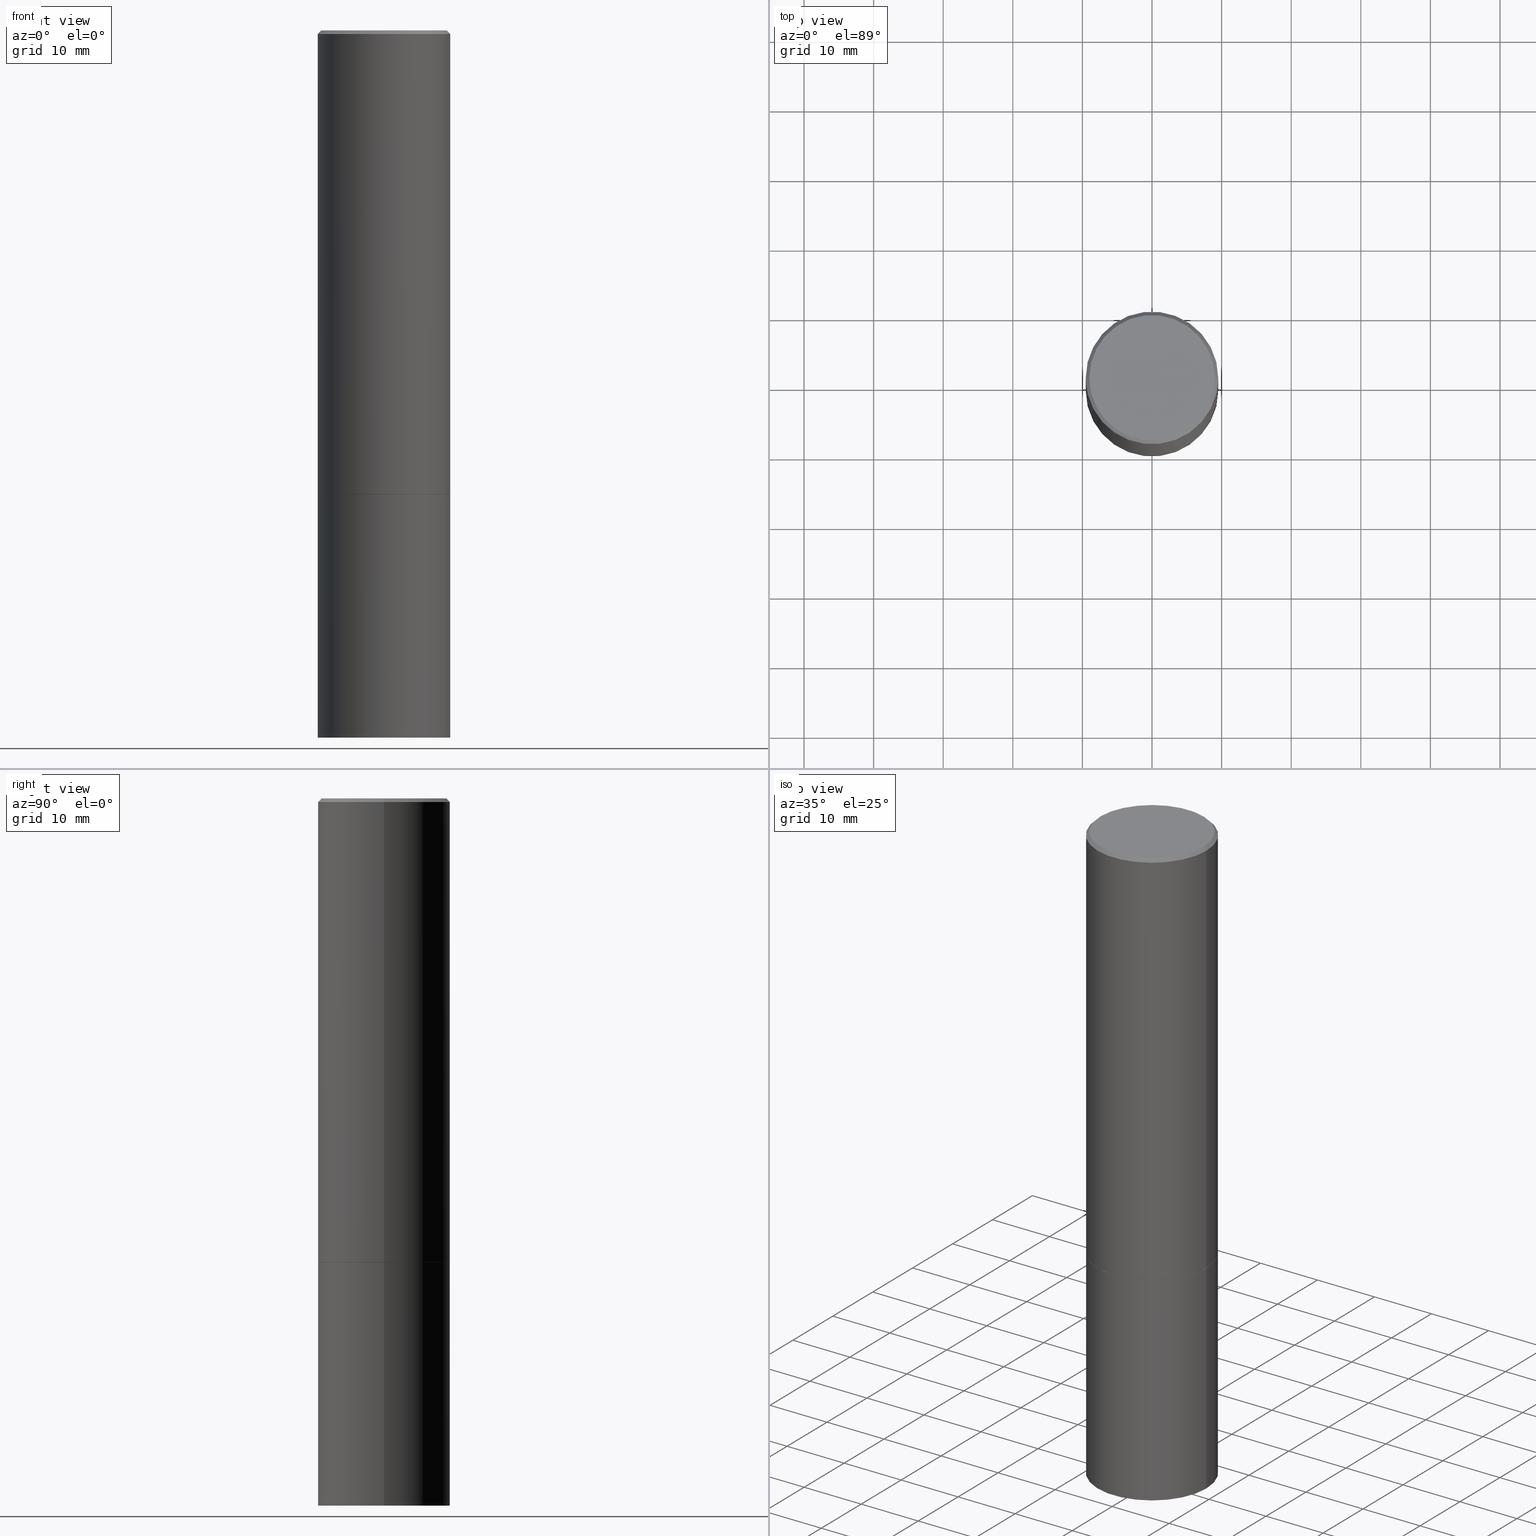
[diagram: canonical four-view strip — front | top / right | iso, engineering-drawing reading convention]
A machine part, canonical four-view strip (front | top / right | iso — engineering-drawing reading convention). The complete STEP part file that produces these views, byte-faithful:
ISO-10303-21;
HEADER;
FILE_DESCRIPTION (( 'STEP AP203' ),
    '1' );
FILE_NAME ('72985.STEP',
    '2024-02-29T06:45:24',
    ( '' ),
    ( '' ),
    'SwSTEP 2.0',
    'SolidWorks 2023',
    '' );
FILE_SCHEMA (( 'CONFIG_CONTROL_DESIGN' ));
ENDSEC;

DATA;
#1 = PERSON_AND_ORGANIZATION_ROLE ( 'creator' ) ;
#2 = ORIENTED_EDGE ( 'NONE', *, *, #313, .T. ) ;
#3 = ORIENTED_EDGE ( 'NONE', *, *, #294, .T. ) ;
#4 = EDGE_CURVE ( 'NONE', #93, #208, #218, .T. ) ;
#5 = AXIS2_PLACEMENT_3D ( 'NONE', #358, #146, #143 ) ;
#6 = VERTEX_POINT ( 'NONE', #248 ) ;
#7 = CARTESIAN_POINT ( 'NONE',  ( -3.131554243005659264E-46, 4.471029511141341874E-32, 1.280553747030123384E-17 ) ) ;
#8 = PRODUCT_DEFINITION_SHAPE ( 'NONE', 'NONE',  #169 ) ;
#9 = EDGE_LOOP ( 'NONE', ( #160, #308, #121, #77 ) ) ;
#10 = CARTESIAN_POINT ( 'NONE',  ( 0.3739999999999999991, -1.177676655591791904E-14, -2.624999999999999556 ) ) ;
#11 = ADVANCED_FACE ( 'NONE', ( #18 ), #163, .T. ) ;
#12 = CONICAL_SURFACE ( 'NONE', #165, 0.3739999999999999991, 0.7853981633978239785 ) ;
#13 = CIRCLE ( 'NONE', #149, 0.3749999999999996114 ) ;
#14 = CARTESIAN_POINT ( 'NONE',  ( 0.000000000000000000, 0.000000000000000000, 0.000000000000000000 ) ) ;
#15 = DESIGN_CONTEXT ( 'detailed design', #363, 'design' ) ;
#16 = ORIENTED_EDGE ( 'NONE', *, *, #344, .F. ) ;
#17 = EDGE_CURVE ( 'NONE', #338, #319, #361, .T. ) ;
#18 = FACE_OUTER_BOUND ( 'NONE', #212, .T. ) ;
#19 = ORGANIZATION ( 'UNSPECIFIED', 'UNSPECIFIED', '' ) ;
#20 = LINE ( 'NONE', #287, #132 ) ;
#21 = ADVANCED_FACE ( 'NONE', ( #101 ), #167, .T. ) ;
#22 = DIRECTION ( 'NONE',  ( 1.000000000000000000, -6.982962677686266711E-15, 0.000000000000000000 ) ) ;
#23 = CARTESIAN_POINT ( 'NONE',  ( 2.618611004132448230E-15, 0.3749999999999861222, -4.000000000000000888 ) ) ;
#24 = DATE_AND_TIME ( #235, #46 ) ;
#25 = FACE_OUTER_BOUND ( 'NONE', #158, .T. ) ;
#26 = DIRECTION ( 'NONE',  ( 1.000000000000000000, -6.982962677686265133E-15, 0.000000000000000000 ) ) ;
#27 = PERSON_AND_ORGANIZATION_ROLE ( 'creator' ) ;
#28 = CARTESIAN_POINT ( 'NONE',  ( 2.478951750578621448E-15, 0.3549999999999995381, -1.233073106554164423E-15 ) ) ;
#29 = EDGE_CURVE ( 'NONE', #322, #237, #172, .T. ) ;
#30 = FACE_OUTER_BOUND ( 'NONE', #335, .T. ) ;
#31 = CARTESIAN_POINT ( 'NONE',  ( 6.419355616235982445E-29, -9.165138514463255034E-15, -2.624999999999999556 ) ) ;
#32 =( GEOMETRIC_REPRESENTATION_CONTEXT ( 3 ) GLOBAL_UNCERTAINTY_ASSIGNED_CONTEXT ( ( #156 ) ) GLOBAL_UNIT_ASSIGNED_CONTEXT ( ( #133, #352, #301 ) ) REPRESENTATION_CONTEXT ( 'NONE', 'WORKASPACE' ) );
#33 = FACE_OUTER_BOUND ( 'NONE', #67, .T. ) ;
#34 = APPROVAL_ROLE ( '' ) ;
#35 = ORIENTED_EDGE ( 'NONE', *, *, #190, .F. ) ;
#36 = APPROVAL ( #263, 'UNSPECIFIED' ) ;
#37 = ORIENTED_EDGE ( 'NONE', *, *, #283, .T. ) ;
#38 = CIRCLE ( 'NONE', #331, 0.3750000000000000555 ) ;
#39 = AXIS2_PLACEMENT_3D ( 'NONE', #182, #80, #48 ) ;
#40 = VECTOR ( 'NONE', #198, 39.37007874015748143 ) ;
#41 = ADVANCED_FACE ( 'NONE', ( #284 ), #106, .T. ) ;
#42 = DIRECTION ( 'NONE',  ( -2.445468806185136597E-29, 3.491481338843145583E-15, 1.000000000000000000 ) ) ;
#43 = ORIENTED_EDGE ( 'NONE', *, *, #17, .T. ) ;
#44 = CARTESIAN_POINT ( 'NONE',  ( 6.419355616235982445E-29, -9.165138514463255034E-15, -2.624999999999999556 ) ) ;
#45 = AXIS2_PLACEMENT_3D ( 'NONE', #258, #78, #195 ) ;
#46 = LOCAL_TIME ( 1, 45, 24.00000000000000000, #86 ) ;
#47 = LINE ( 'NONE', #111, #277 ) ;
#48 = DIRECTION ( 'NONE',  ( 1.000000000000000000, -6.982962677686265133E-15, 0.000000000000000000 ) ) ;
#49 = DIRECTION ( 'NONE',  ( -2.445468806185136597E-29, 3.491481338843145583E-15, 1.000000000000000000 ) ) ;
#50 = DIRECTION ( 'NONE',  ( -2.445468806185136597E-29, 3.491481338843145583E-15, 1.000000000000000000 ) ) ;
#51 = VECTOR ( 'NONE', #116, 39.37007874015748143 ) ;
#52 = APPROVAL_PERSON_ORGANIZATION ( #314, #222, #61 ) ;
#53 = CC_DESIGN_PERSON_AND_ORGANIZATION_ASSIGNMENT ( #292, #183, ( #166 ) ) ;
#54 = COORDINATED_UNIVERSAL_TIME_OFFSET ( 5, 0, .BEHIND. ) ;
#55 = DIRECTION ( 'NONE',  ( -2.445468806185136877E-29, 3.491481338843145188E-15, 1.000000000000000000 ) ) ;
#56 = DIRECTION ( 'NONE',  ( -2.445468806185136597E-29, 3.491481338843145583E-15, 1.000000000000000000 ) ) ;
#57 = APPROVAL_STATUS ( 'not_yet_approved' ) ;
#58 = ORIENTED_EDGE ( 'NONE', *, *, #313, .F. ) ;
#59 = CARTESIAN_POINT ( 'NONE',  ( -0.3749999999999996114, 2.548781377355483957E-15, -0.02000000000000008715 ) ) ;
#60 = CIRCLE ( 'NONE', #342, 0.3549999999999995381 ) ;
#61 = APPROVAL_ROLE ( '' ) ;
#62 = FACE_OUTER_BOUND ( 'NONE', #189, .T. ) ;
#63 = AXIS2_PLACEMENT_3D ( 'NONE', #119, #293, #311 ) ;
#64 = ORIENTED_EDGE ( 'NONE', *, *, #178, .T. ) ;
#65 = EDGE_CURVE ( 'NONE', #322, #151, #38, .T. ) ;
#66 = ORIENTED_EDGE ( 'NONE', *, *, #76, .F. ) ;
#67 = EDGE_LOOP ( 'NONE', ( #123, #3 ) ) ;
#68 = PRODUCT ( '72985', '72985', '', ( #207 ) ) ;
#69 = ORIENTED_EDGE ( 'NONE', *, *, #265, .T. ) ;
#70 = CC_DESIGN_PERSON_AND_ORGANIZATION_ASSIGNMENT ( #257, #255, ( #68 ) ) ;
#71 = CARTESIAN_POINT ( 'NONE',  ( 0.3739999999999999991, -1.177676655591791904E-14, -2.624999999999999556 ) ) ;
#72 = CARTESIAN_POINT ( 'NONE',  ( -0.3749999999999999445, -1.951203070850261571E-15, -2.624000000000000110 ) ) ;
#73 = DIRECTION ( 'NONE',  ( 1.000000000000000000, -6.982962677686265922E-15, 4.876176775795935793E-29 ) ) ;
#74 = EDGE_LOOP ( 'NONE', ( #365, #291, #303, #269 ) ) ;
#75 = DIRECTION ( 'NONE',  ( 1.000000000000000000, -6.982962677686265922E-15, 4.876176775795935793E-29 ) ) ;
#76 = EDGE_CURVE ( 'NONE', #151, #6, #309, .T. ) ;
#77 = ORIENTED_EDGE ( 'NONE', *, *, #328, .F. ) ;
#78 = DIRECTION ( 'NONE',  ( 2.445468806185136597E-29, -3.491481338843145583E-15, -1.000000000000000000 ) ) ;
#79 = CC_DESIGN_APPROVAL ( #271, ( #302 ) ) ;
#80 = DIRECTION ( 'NONE',  ( -2.445468806185136597E-29, 3.491481338843145583E-15, 1.000000000000000000 ) ) ;
#81 = ORIENTED_EDGE ( 'NONE', *, *, #190, .T. ) ;
#82 = CARTESIAN_POINT ( 'NONE',  ( 6.419355616235982445E-29, -9.165138514463255034E-15, -2.624999999999999556 ) ) ;
#83 = EDGE_CURVE ( 'NONE', #319, #208, #47, .T. ) ;
#84 = DIRECTION ( 'NONE',  ( -2.445468806185136597E-29, 3.491481338843145583E-15, 1.000000000000000000 ) ) ;
#85 = LOCAL_TIME ( 1, 45, 24.00000000000000000, #115 ) ;
#86 = COORDINATED_UNIVERSAL_TIME_OFFSET ( 5, 0, .BEHIND. ) ;
#87 = CARTESIAN_POINT ( 'NONE',  ( 0.3750000000000000555, -1.178374951859560505E-14, -2.624999999999999556 ) ) ;
#88 = CARTESIAN_POINT ( 'NONE',  ( 6.416910147429799085E-29, -9.161647033124413605E-15, -2.624000000000000110 ) ) ;
#89 = PERSON_AND_ORGANIZATION ( #329, #19 ) ;
#90 = DIRECTION ( 'NONE',  ( 1.000000000000000000, -6.982962677686265133E-15, 0.000000000000000000 ) ) ;
#91 = VERTEX_POINT ( 'NONE', #221 ) ;
#92 = EDGE_CURVE ( 'NONE', #185, #322, #20, .T. ) ;
#93 = VERTEX_POINT ( 'NONE', #87 ) ;
#94 = CARTESIAN_POINT ( 'NONE',  ( -0.3750000000000000555, -8.900996675817542197E-15, -4.000000000000000000 ) ) ;
#95 = LOCAL_TIME ( 1, 45, 24.00000000000000000, #145 ) ;
#96 = DIRECTION ( 'NONE',  ( 1.000000000000000000, 0.000000000000000000, 0.000000000000000000 ) ) ;
#97 =( LENGTH_UNIT ( ) NAMED_UNIT ( * ) SI_UNIT ( $, .METRE. ) );
#98 = ADVANCED_FACE ( 'NONE', ( #25 ), #251, .F. ) ;
#99 = DIMENSIONAL_EXPONENTS ( 1.000000000000000000, 0.000000000000000000, 0.000000000000000000, 0.000000000000000000, 0.000000000000000000, 0.000000000000000000, 0.000000000000000000 ) ;
#100 = VECTOR ( 'NONE', #279, 39.37007874015748143 ) ;
#101 = FACE_OUTER_BOUND ( 'NONE', #268, .T. ) ;
#102 = CYLINDRICAL_SURFACE ( 'NONE', #253, 0.3749999999999998335 ) ;
#103 = CARTESIAN_POINT ( 'NONE',  ( 9.781875224740546387E-29, -1.396592535537258233E-14, -4.000000000000000000 ) ) ;
#104 = CC_DESIGN_DATE_AND_TIME_ASSIGNMENT ( #295, #227, ( #166 ) ) ;
#105 = ORIENTED_EDGE ( 'NONE', *, *, #283, .F. ) ;
#106 = CONICAL_SURFACE ( 'NONE', #346, 0.3749999999999996114, 0.7853981633974473908 ) ;
#107 = AXIS2_PLACEMENT_3D ( 'NONE', #142, #334, #96 ) ;
#108 = EDGE_CURVE ( 'NONE', #237, #6, #249, .T. ) ;
#109 = DIRECTION ( 'NONE',  ( 2.438088387897960049E-29, -3.491481338843145188E-15, -1.000000000000000000 ) ) ;
#110 = CARTESIAN_POINT ( 'NONE',  ( 4.890937612370294178E-31, -6.982962677686321191E-17, -0.02000000000000008715 ) ) ;
#111 = CARTESIAN_POINT ( 'NONE',  ( -0.3750000000000000555, 2.664535259100376091E-15, -1.844600658845589598E-29 ) ) ;
#112 = ADVANCED_FACE ( 'NONE', ( #330 ), #171, .T. ) ;
#113 = CALENDAR_DATE ( 2024, 29, 2 ) ;
#114 = DIRECTION ( 'NONE',  ( 1.000000000000000000, -6.982962677686266711E-15, 0.000000000000000000 ) ) ;
#115 = COORDINATED_UNIVERSAL_TIME_OFFSET ( 5, 0, .BEHIND. ) ;
#116 = DIRECTION ( 'NONE',  ( -2.445468806185136877E-29, 3.491481338843145188E-15, 1.000000000000000000 ) ) ;
#117 = CC_DESIGN_APPROVAL ( #36, ( #166 ) ) ;
#118 = PERSON_AND_ORGANIZATION ( #329, #19 ) ;
#119 = CARTESIAN_POINT ( 'NONE',  ( 9.781875224740546387E-29, -1.396592535537258233E-14, -4.000000000000000000 ) ) ;
#120 = CALENDAR_DATE ( 2024, 29, 2 ) ;
#121 = ORIENTED_EDGE ( 'NONE', *, *, #265, .F. ) ;
#122 = DIRECTION ( 'NONE',  ( 0.7071067811868130271, -2.468850131085038979E-15, 0.7071067811862817853 ) ) ;
#123 = ORIENTED_EDGE ( 'NONE', *, *, #4, .T. ) ;
#124 = AXIS2_PLACEMENT_3D ( 'NONE', #131, #350, #214 ) ;
#125 = CIRCLE ( 'NONE', #354, 0.3750000000000000555 ) ;
#126 = ORIENTED_EDGE ( 'NONE', *, *, #203, .F. ) ;
#127 = CC_DESIGN_PERSON_AND_ORGANIZATION_ASSIGNMENT ( #204, #27, ( #302 ) ) ;
#128 = DIRECTION ( 'NONE',  ( -1.000000000000000000, 6.982962677686265922E-15, -4.876176775795935793E-29 ) ) ;
#129 = CARTESIAN_POINT ( 'NONE',  ( 0.3750000000000000555, -1.658453635950493392E-14, -4.000000000000000000 ) ) ;
#130 = VECTOR ( 'NONE', #181, 39.37007874015748143 ) ;
#131 = CARTESIAN_POINT ( 'NONE',  ( 0.000000000000000000, 0.000000000000000000, 0.000000000000000000 ) ) ;
#132 = VECTOR ( 'NONE', #197, 39.37007874015748854 ) ;
#133 =( CONVERSION_BASED_UNIT ( 'INCH', #186 ) LENGTH_UNIT ( ) NAMED_UNIT ( #99 ) );
#134 = EDGE_CURVE ( 'NONE', #185, #348, #324, .T. ) ;
#135 = DIRECTION ( 'NONE',  ( 2.445468806185136597E-29, -3.491481338843145583E-15, -1.000000000000000000 ) ) ;
#136 = DIRECTION ( 'NONE',  ( -1.000000000000000000, 6.982962677686265922E-15, -4.876176775795935793E-29 ) ) ;
#137 = CLOSED_SHELL ( 'NONE', ( #236, #21, #112, #41, #154, #164, #211, #98 ) ) ;
#138 = LOCAL_TIME ( 1, 45, 24.00000000000000000, #54 ) ;
#139 = PLANE ( 'NONE',  #275 ) ;
#140 = ADVANCED_FACE ( 'NONE', ( #62 ), #161, .T. ) ;
#141 = DIRECTION ( 'NONE',  ( -1.000000000000000000, 6.982962677686265922E-15, -4.876176775795935793E-29 ) ) ;
#142 = CARTESIAN_POINT ( 'NONE',  ( 0.000000000000000000, 0.000000000000000000, 0.000000000000000000 ) ) ;
#143 = DIRECTION ( 'NONE',  ( 1.000000000000000000, -6.982962677686265922E-15, 4.876176775795935793E-29 ) ) ;
#144 = APPLICATION_CONTEXT ( 'configuration controlled 3d designs of mechanical parts and assemblies' ) ;
#145 = COORDINATED_UNIVERSAL_TIME_OFFSET ( 5, 0, .BEHIND. ) ;
#146 = DIRECTION ( 'NONE',  ( -2.438088387897960049E-29, 3.491481338843145188E-15, 1.000000000000000000 ) ) ;
#147 = AXIS2_PLACEMENT_3D ( 'NONE', #307, #49, #246 ) ;
#148 = ADVANCED_BREP_SHAPE_REPRESENTATION ( '72985', ( #162, #278, #107 ), #32 ) ;
#149 = AXIS2_PLACEMENT_3D ( 'NONE', #259, #231, #114 ) ;
#150 = DATE_TIME_ROLE ( 'creation_date' ) ;
#151 = VERTEX_POINT ( 'NONE', #243 ) ;
#152 = COORDINATED_UNIVERSAL_TIME_OFFSET ( 5, 0, .BEHIND. ) ;
#153 = DIRECTION ( 'NONE',  ( -2.445468806185136597E-29, 3.491481338843145583E-15, 1.000000000000000000 ) ) ;
#154 = ADVANCED_FACE ( 'NONE', ( #349 ), #102, .T. ) ;
#155 = ORIENTED_EDGE ( 'NONE', *, *, #29, .F. ) ;
#156 = UNCERTAINTY_MEASURE_WITH_UNIT (LENGTH_MEASURE( 1.000000000000000082E-05 ), #133, 'distance_accuracy_value', 'NONE');
#157 = SHAPE_DEFINITION_REPRESENTATION ( #8, #148 ) ;
#158 = EDGE_LOOP ( 'NONE', ( #316, #81 ) ) ;
#159 = DIRECTION ( 'NONE',  ( -2.445468806185136877E-29, 3.491481338843145188E-15, 1.000000000000000000 ) ) ;
#160 = ORIENTED_EDGE ( 'NONE', *, *, #203, .T. ) ;
#161 = CYLINDRICAL_SURFACE ( 'NONE', #242, 0.3750000000000000555 ) ;
#162 = MANIFOLD_SOLID_BREP ( 'Body-Move/Copy2[1]', #351 ) ;
#163 = CYLINDRICAL_SURFACE ( 'NONE', #238, 0.3750000000000000555 ) ;
#164 = ADVANCED_FACE ( 'NONE', ( #290 ), #12, .T. ) ;
#165 = AXIS2_PLACEMENT_3D ( 'NONE', #31, #261, #90 ) ;
#166 = SECURITY_CLASSIFICATION ( '', '', #359 ) ;
#167 = CYLINDRICAL_SURFACE ( 'NONE', #124, 0.3749999999999998335 ) ;
#168 = DIRECTION ( 'NONE',  ( 1.000000000000000000, -6.982962677686266711E-15, 0.000000000000000000 ) ) ;
#169 = PRODUCT_DEFINITION ( 'UNKNOWN', '', #302, #15 ) ;
#170 = DIRECTION ( 'NONE',  ( 1.000000000000000000, -6.982962677686265922E-15, 4.876176775795935793E-29 ) ) ;
#171 = CONICAL_SURFACE ( 'NONE', #45, 0.3749999999999996114, 0.7853981633974473908 ) ;
#172 = LINE ( 'NONE', #177, #51 ) ;
#173 = ORIENTED_EDGE ( 'NONE', *, *, #192, .T. ) ;
#174 = CC_DESIGN_PERSON_AND_ORGANIZATION_ASSIGNMENT ( #89, #362, ( #302 ) ) ;
#175 = AXIS2_PLACEMENT_3D ( 'NONE', #82, #199, #234 ) ;
#176 = CARTESIAN_POINT ( 'NONE',  ( 6.419355616235982445E-29, -9.165138514463255034E-15, -2.624999999999999556 ) ) ;
#177 = CARTESIAN_POINT ( 'NONE',  ( -0.3749999999999998335, 2.664535259100374514E-15, -1.844600658845588757E-29 ) ) ;
#178 = EDGE_CURVE ( 'NONE', #91, #6, #206, .T. ) ;
#179 = CARTESIAN_POINT ( 'NONE',  ( -3.131554243005659264E-46, 4.471029511141341874E-32, 1.280553747030123384E-17 ) ) ;
#180 = APPROVAL_DATE_TIME ( #24, #222 ) ;
#181 = DIRECTION ( 'NONE',  ( 0.7071067811865469066, -7.319954787623254468E-15, -0.7071067811865482389 ) ) ;
#182 = CARTESIAN_POINT ( 'NONE',  ( 6.419355616235982445E-29, -9.165138514463255034E-15, -2.624999999999999556 ) ) ;
#183 = PERSON_AND_ORGANIZATION_ROLE ( 'classification_officer' ) ;
#184 = ORIENTED_EDGE ( 'NONE', *, *, #178, .F. ) ;
#185 = VERTEX_POINT ( 'NONE', #280 ) ;
#186 = LENGTH_MEASURE_WITH_UNIT ( LENGTH_MEASURE( 0.02539999999999999897 ), #97 );
#187 = VERTEX_POINT ( 'NONE', #366 ) ;
#188 = CONICAL_SURFACE ( 'NONE', #39, 0.3739999999999999991, 0.7853981633978239785 ) ;
#189 = EDGE_LOOP ( 'NONE', ( #43, #281, #299, #58 ) ) ;
#190 = EDGE_CURVE ( 'NONE', #91, #187, #60, .T. ) ;
#191 = AXIS2_PLACEMENT_3D ( 'NONE', #176, #50, #26 ) ;
#192 = EDGE_CURVE ( 'NONE', #187, #237, #288, .T. ) ;
#193 = ORIENTED_EDGE ( 'NONE', *, *, #294, .F. ) ;
#194 = ORIENTED_EDGE ( 'NONE', *, *, #83, .F. ) ;
#195 = DIRECTION ( 'NONE',  ( -1.000000000000000000, 6.982962677686266711E-15, 0.000000000000000000 ) ) ;
#196 = CIRCLE ( 'NONE', #175, 0.3750000000000000555 ) ;
#197 = DIRECTION ( 'NONE',  ( -0.7071067811868130271, 7.493145998871311837E-15, 0.7071067811862817853 ) ) ;
#198 = DIRECTION ( 'NONE',  ( -0.7071067811865469066, 2.468850131082249961E-15, -0.7071067811865482389 ) ) ;
#199 = DIRECTION ( 'NONE',  ( -2.445468806185136597E-29, 3.491481338843145583E-15, 1.000000000000000000 ) ) ;
#200 = PERSON_AND_ORGANIZATION ( #329, #19 ) ;
#201 = DIRECTION ( 'NONE',  ( -1.000000000000000000, 6.982962677686266711E-15, 0.000000000000000000 ) ) ;
#202 = DIRECTION ( 'NONE',  ( -2.445468806185136597E-29, 3.491481338843145583E-15, 1.000000000000000000 ) ) ;
#203 = EDGE_CURVE ( 'NONE', #348, #185, #317, .T. ) ;
#204 = PERSON_AND_ORGANIZATION ( #329, #19 ) ;
#205 = DIRECTION ( 'NONE',  ( 1.000000000000000000, -6.982962677686266711E-15, 0.000000000000000000 ) ) ;
#206 = LINE ( 'NONE', #312, #130 ) ;
#207 = MECHANICAL_CONTEXT ( 'NONE', #144, 'mechanical' ) ;
#208 = VERTEX_POINT ( 'NONE', #333 ) ;
#209 = VECTOR ( 'NONE', #159, 39.37007874015748143 ) ;
#210 = EDGE_LOOP ( 'NONE', ( #155, #276, #245, #306 ) ) ;
#211 = ADVANCED_FACE ( 'NONE', ( #30 ), #364, .F. ) ;
#212 = EDGE_LOOP ( 'NONE', ( #194, #37, #2, #193 ) ) ;
#213 = AXIS2_PLACEMENT_3D ( 'NONE', #44, #300, #168 ) ;
#214 = DIRECTION ( 'NONE',  ( 1.000000000000000000, -6.982962677686265922E-15, 4.876176775795935793E-29 ) ) ;
#215 = CARTESIAN_POINT ( 'NONE',  ( 0.000000000000000000, 0.000000000000000000, 0.000000000000000000 ) ) ;
#216 = DIRECTION ( 'NONE',  ( 1.000000000000000000, -6.982962677686266711E-15, 0.000000000000000000 ) ) ;
#217 = EDGE_CURVE ( 'NONE', #6, #237, #13, .T. ) ;
#218 = CIRCLE ( 'NONE', #213, 0.3750000000000000555 ) ;
#219 = VECTOR ( 'NONE', #122, 39.37007874015748854 ) ;
#220 = CARTESIAN_POINT ( 'NONE',  ( 4.890937612370294178E-31, -6.982962677686321191E-17, -0.02000000000000008715 ) ) ;
#221 = CARTESIAN_POINT ( 'NONE',  ( 0.3549999999999995381, -2.538996582575037893E-15, 1.280553747031877983E-17 ) ) ;
#222 = APPROVAL ( #57, 'UNSPECIFIED' ) ;
#223 = CC_DESIGN_APPROVAL ( #222, ( #169 ) ) ;
#224 = DIRECTION ( 'NONE',  ( 2.438088387897960049E-29, -3.491481338843145188E-15, -1.000000000000000000 ) ) ;
#225 = CALENDAR_DATE ( 2024, 29, 2 ) ;
#226 = FACE_OUTER_BOUND ( 'NONE', #9, .T. ) ;
#227 = DATE_TIME_ROLE ( 'classification_date' ) ;
#228 = CARTESIAN_POINT ( 'NONE',  ( 6.416910147429799085E-29, -9.161647033124413605E-15, -2.624000000000000110 ) ) ;
#229 = AXIS2_PLACEMENT_3D ( 'NONE', #7, #153, #273 ) ;
#230 = EDGE_LOOP ( 'NONE', ( #267, #105 ) ) ;
#231 = DIRECTION ( 'NONE',  ( -2.445468806185136597E-29, 3.491481338843145583E-15, 1.000000000000000000 ) ) ;
#232 = APPLICATION_PROTOCOL_DEFINITION ( 'international standard', 'config_control_design', 1994, #144 ) ;
#233 = ORIENTED_EDGE ( 'NONE', *, *, #134, .F. ) ;
#234 = DIRECTION ( 'NONE',  ( 1.000000000000000000, -6.982962677686266711E-15, 0.000000000000000000 ) ) ;
#235 = CALENDAR_DATE ( 2024, 29, 2 ) ;
#236 = ADVANCED_FACE ( 'NONE', ( #226 ), #188, .T. ) ;
#237 = VERTEX_POINT ( 'NONE', #59 ) ;
#238 = AXIS2_PLACEMENT_3D ( 'NONE', #14, #42, #170 ) ;
#239 = ORIENTED_EDGE ( 'NONE', *, *, #192, .F. ) ;
#240 = ADVANCED_FACE ( 'NONE', ( #282 ), #336, .T. ) ;
#241 = DIRECTION ( 'NONE',  ( -2.445468806185136597E-29, 3.491481338843145583E-15, 1.000000000000000000 ) ) ;
#242 = AXIS2_PLACEMENT_3D ( 'NONE', #264, #274, #73 ) ;
#243 = CARTESIAN_POINT ( 'NONE',  ( 0.3750000000000000555, -1.178025803725676520E-14, -2.624000000000000110 ) ) ;
#244 = APPROVAL_PERSON_ORGANIZATION ( #357, #271, #260 ) ;
#245 = ORIENTED_EDGE ( 'NONE', *, *, #76, .T. ) ;
#246 = DIRECTION ( 'NONE',  ( 1.000000000000000000, -6.982962677686265133E-15, 0.000000000000000000 ) ) ;
#247 = APPROVAL_DATE_TIME ( #323, #36 ) ;
#248 = CARTESIAN_POINT ( 'NONE',  ( 0.3749999999999996114, -2.642516375941185268E-15, -0.02000000000000008715 ) ) ;
#249 = CIRCLE ( 'NONE', #353, 0.3749999999999996114 ) ;
#250 = CIRCLE ( 'NONE', #63, 0.3750000000000000555 ) ;
#251 = PLANE ( 'NONE',  #315 ) ;
#252 = CARTESIAN_POINT ( 'NONE',  ( 0.3749999999999998335, -2.618611004132348439E-15, 1.828566290923475082E-29 ) ) ;
#253 = AXIS2_PLACEMENT_3D ( 'NONE', #215, #327, #75 ) ;
#254 = CIRCLE ( 'NONE', #229, 0.3549999999999995381 ) ;
#255 = PERSON_AND_ORGANIZATION_ROLE ( 'design_owner' ) ;
#256 = CC_DESIGN_DATE_AND_TIME_ASSIGNMENT ( #341, #150, ( #169 ) ) ;
#257 = PERSON_AND_ORGANIZATION ( #329, #19 ) ;
#258 = CARTESIAN_POINT ( 'NONE',  ( 4.890937612370294178E-31, -6.982962677686321191E-17, -0.02000000000000008715 ) ) ;
#259 = CARTESIAN_POINT ( 'NONE',  ( 4.890937612370294178E-31, -6.982962677686321191E-17, -0.02000000000000008715 ) ) ;
#260 = APPROVAL_ROLE ( '' ) ;
#261 = DIRECTION ( 'NONE',  ( -2.445468806185136597E-29, 3.491481338843145583E-15, 1.000000000000000000 ) ) ;
#262 = CARTESIAN_POINT ( 'NONE',  ( -0.3749999999999996114, 2.548781377355483957E-15, -0.02000000000000008715 ) ) ;
#263 = APPROVAL_STATUS ( 'not_yet_approved' ) ;
#264 = CARTESIAN_POINT ( 'NONE',  ( 0.000000000000000000, 0.000000000000000000, 0.000000000000000000 ) ) ;
#265 = EDGE_CURVE ( 'NONE', #151, #322, #125, .T. ) ;
#266 = CALENDAR_DATE ( 2024, 29, 2 ) ;
#267 = ORIENTED_EDGE ( 'NONE', *, *, #17, .F. ) ;
#268 = EDGE_LOOP ( 'NONE', ( #69, #339, #296, #66 ) ) ;
#269 = ORIENTED_EDGE ( 'NONE', *, *, #65, .F. ) ;
#270 = AXIS2_PLACEMENT_3D ( 'NONE', #103, #241, #216 ) ;
#271 = APPROVAL ( #318, 'UNSPECIFIED' ) ;
#272 = ORIENTED_EDGE ( 'NONE', *, *, #108, .T. ) ;
#273 = DIRECTION ( 'NONE',  ( 1.000000000000000000, -6.982962677686266711E-15, 4.876231632511994349E-29 ) ) ;
#274 = DIRECTION ( 'NONE',  ( -2.445468806185136597E-29, 3.491481338843145583E-15, 1.000000000000000000 ) ) ;
#275 = AXIS2_PLACEMENT_3D ( 'NONE', #356, #224, #128 ) ;
#276 = ORIENTED_EDGE ( 'NONE', *, *, #65, .T. ) ;
#277 = VECTOR ( 'NONE', #55, 39.37007874015748143 ) ;
#278 = MANIFOLD_SOLID_BREP ( 'Body-Move/Copy2[2]', #137 ) ;
#279 = DIRECTION ( 'NONE',  ( -2.445468806185136877E-29, 3.491481338843145188E-15, 1.000000000000000000 ) ) ;
#280 = CARTESIAN_POINT ( 'NONE',  ( -0.3739999999999999991, -6.502410228372258732E-15, -2.624999999999999556 ) ) ;
#281 = ORIENTED_EDGE ( 'NONE', *, *, #83, .T. ) ;
#282 = FACE_OUTER_BOUND ( 'NONE', #230, .T. ) ;
#283 = EDGE_CURVE ( 'NONE', #319, #338, #250, .T. ) ;
#284 = FACE_OUTER_BOUND ( 'NONE', #320, .T. ) ;
#285 = DIRECTION ( 'NONE',  ( 2.438088387897960049E-29, -3.491481338843145188E-15, -1.000000000000000000 ) ) ;
#286 = APPROVAL_DATE_TIME ( #337, #271 ) ;
#287 = CARTESIAN_POINT ( 'NONE',  ( -0.3739999999999999991, -6.507708682720480345E-15, -2.624999999999999556 ) ) ;
#288 = LINE ( 'NONE', #262, #40 ) ;
#289 = APPLICATION_PROTOCOL_DEFINITION ( 'international standard', 'config_control_design', 1994, #363 ) ;
#290 = FACE_OUTER_BOUND ( 'NONE', #74, .T. ) ;
#291 = ORIENTED_EDGE ( 'NONE', *, *, #134, .T. ) ;
#292 = PERSON_AND_ORGANIZATION ( #329, #19 ) ;
#293 = DIRECTION ( 'NONE',  ( -2.445468806185136597E-29, 3.491481338843145583E-15, 1.000000000000000000 ) ) ;
#294 = EDGE_CURVE ( 'NONE', #208, #93, #196, .T. ) ;
#295 = DATE_AND_TIME ( #120, #85 ) ;
#296 = ORIENTED_EDGE ( 'NONE', *, *, #217, .F. ) ;
#297 = LINE ( 'NONE', #340, #209 ) ;
#298 = ORIENTED_EDGE ( 'NONE', *, *, #217, .T. ) ;
#299 = ORIENTED_EDGE ( 'NONE', *, *, #4, .F. ) ;
#300 = DIRECTION ( 'NONE',  ( -2.445468806185136597E-29, 3.491481338843145583E-15, 1.000000000000000000 ) ) ;
#301 =( NAMED_UNIT ( * ) SI_UNIT ( $, .STERADIAN. ) SOLID_ANGLE_UNIT ( ) );
#302 = PRODUCT_DEFINITION_FORMATION_WITH_SPECIFIED_SOURCE ( 'ANY', '', #68, .NOT_KNOWN. ) ;
#303 = ORIENTED_EDGE ( 'NONE', *, *, #328, .T. ) ;
#304 = ADVANCED_FACE ( 'NONE', ( #33 ), #139, .F. ) ;
#305 = LOCAL_TIME ( 1, 45, 24.00000000000000000, #152 ) ;
#306 = ORIENTED_EDGE ( 'NONE', *, *, #108, .F. ) ;
#307 = CARTESIAN_POINT ( 'NONE',  ( 6.419355616235982445E-29, -9.165138514463255034E-15, -2.624999999999999556 ) ) ;
#308 = ORIENTED_EDGE ( 'NONE', *, *, #92, .T. ) ;
#309 = LINE ( 'NONE', #252, #100 ) ;
#310 = DIRECTION ( 'NONE',  ( 1.000000000000000000, -6.982962677686266711E-15, 4.876231632511994349E-29 ) ) ;
#311 = DIRECTION ( 'NONE',  ( 1.000000000000000000, -6.982962677686266711E-15, 0.000000000000000000 ) ) ;
#312 = CARTESIAN_POINT ( 'NONE',  ( 0.3749999999999996114, -2.642516375941185268E-15, -0.02000000000000008715 ) ) ;
#313 = EDGE_CURVE ( 'NONE', #338, #93, #297, .T. ) ;
#314 = PERSON_AND_ORGANIZATION ( #329, #19 ) ;
#315 = AXIS2_PLACEMENT_3D ( 'NONE', #28, #109, #136 ) ;
#316 = ORIENTED_EDGE ( 'NONE', *, *, #344, .T. ) ;
#317 = CIRCLE ( 'NONE', #191, 0.3739999999999999991 ) ;
#318 = APPROVAL_STATUS ( 'not_yet_approved' ) ;
#319 = VERTEX_POINT ( 'NONE', #94 ) ;
#320 = EDGE_LOOP ( 'NONE', ( #184, #16, #173, #272 ) ) ;
#321 = CC_DESIGN_PERSON_AND_ORGANIZATION_ASSIGNMENT ( #200, #1, ( #169 ) ) ;
#322 = VERTEX_POINT ( 'NONE', #72 ) ;
#323 = DATE_AND_TIME ( #266, #305 ) ;
#324 = CIRCLE ( 'NONE', #147, 0.3739999999999999991 ) ;
#325 = APPROVAL_PERSON_ORGANIZATION ( #118, #36, #34 ) ;
#326 = LINE ( 'NONE', #71, #219 ) ;
#327 = DIRECTION ( 'NONE',  ( -2.445468806185136597E-29, 3.491481338843145583E-15, 1.000000000000000000 ) ) ;
#328 = EDGE_CURVE ( 'NONE', #348, #151, #326, .T. ) ;
#329 = PERSON ( 'UNSPECIFIED', 'UNSPECIFIED', 'UNSPECIFIED', ('UNSPECIFIED'), ('UNSPECIFIED'), ('UNSPECIFIED') ) ;
#330 = FACE_OUTER_BOUND ( 'NONE', #345, .T. ) ;
#331 = AXIS2_PLACEMENT_3D ( 'NONE', #228, #84, #22 ) ;
#332 = DIRECTION ( 'NONE',  ( 1.000000000000000000, -6.982962677686266711E-15, 0.000000000000000000 ) ) ;
#333 = CARTESIAN_POINT ( 'NONE',  ( -0.3750000000000000555, -8.900996675817542197E-15, -2.624999999999999556 ) ) ;
#334 = DIRECTION ( 'NONE',  ( 0.000000000000000000, 0.000000000000000000, 1.000000000000000000 ) ) ;
#335 = EDGE_LOOP ( 'NONE', ( #126, #233 ) ) ;
#336 = PLANE ( 'NONE',  #347 ) ;
#337 = DATE_AND_TIME ( #225, #138 ) ;
#338 = VERTEX_POINT ( 'NONE', #129 ) ;
#339 = ORIENTED_EDGE ( 'NONE', *, *, #29, .T. ) ;
#340 = CARTESIAN_POINT ( 'NONE',  ( 0.3750000000000000555, -2.618611004132350016E-15, 1.828566290923476203E-29 ) ) ;
#341 = DATE_AND_TIME ( #113, #95 ) ;
#342 = AXIS2_PLACEMENT_3D ( 'NONE', #179, #202, #310 ) ;
#343 = CC_DESIGN_SECURITY_CLASSIFICATION ( #166, ( #302 ) ) ;
#344 = EDGE_CURVE ( 'NONE', #187, #91, #254, .T. ) ;
#345 = EDGE_LOOP ( 'NONE', ( #35, #64, #298, #239 ) ) ;
#346 = AXIS2_PLACEMENT_3D ( 'NONE', #110, #135, #201 ) ;
#347 = AXIS2_PLACEMENT_3D ( 'NONE', #23, #285, #141 ) ;
#348 = VERTEX_POINT ( 'NONE', #10 ) ;
#349 = FACE_OUTER_BOUND ( 'NONE', #210, .T. ) ;
#350 = DIRECTION ( 'NONE',  ( -2.445468806185136597E-29, 3.491481338843145583E-15, 1.000000000000000000 ) ) ;
#351 = CLOSED_SHELL ( 'NONE', ( #140, #240, #304, #11 ) ) ;
#352 =( NAMED_UNIT ( * ) PLANE_ANGLE_UNIT ( ) SI_UNIT ( $, .RADIAN. ) );
#353 = AXIS2_PLACEMENT_3D ( 'NONE', #220, #355, #332 ) ;
#354 = AXIS2_PLACEMENT_3D ( 'NONE', #88, #56, #205 ) ;
#355 = DIRECTION ( 'NONE',  ( -2.445468806185136597E-29, 3.491481338843145583E-15, 1.000000000000000000 ) ) ;
#356 = CARTESIAN_POINT ( 'NONE',  ( 2.618611004132414309E-15, 0.3749999999999908962, -2.625000000000000444 ) ) ;
#357 = PERSON_AND_ORGANIZATION ( #329, #19 ) ;
#358 = CARTESIAN_POINT ( 'NONE',  ( 6.419355616235982445E-29, -9.165138514463255034E-15, -2.624999999999999556 ) ) ;
#359 = SECURITY_CLASSIFICATION_LEVEL ( 'unclassified' ) ;
#360 = PRODUCT_RELATED_PRODUCT_CATEGORY ( 'detail', '', ( #68 ) ) ;
#361 = CIRCLE ( 'NONE', #270, 0.3750000000000000555 ) ;
#362 = PERSON_AND_ORGANIZATION_ROLE ( 'design_supplier' ) ;
#363 = APPLICATION_CONTEXT ( 'configuration controlled 3d designs of mechanical parts and assemblies' ) ;
#364 = PLANE ( 'NONE',  #5 ) ;
#365 = ORIENTED_EDGE ( 'NONE', *, *, #92, .F. ) ;
#366 = CARTESIAN_POINT ( 'NONE',  ( -0.3549999999999995381, 2.513866563967052703E-15, 1.280553747028377567E-17 ) ) ;
ENDSEC;
END-ISO-10303-21;
